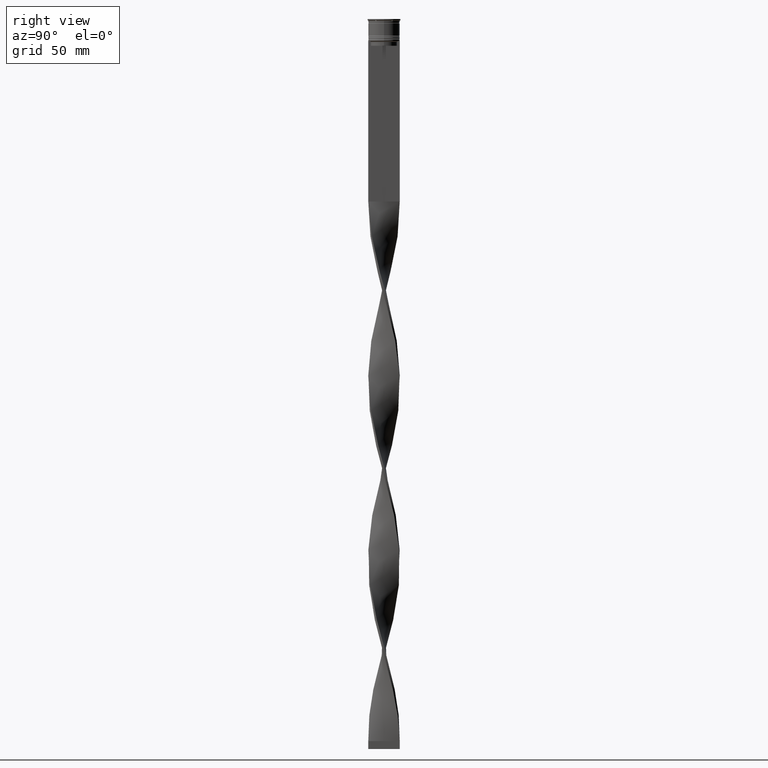
[diagram: clean part render]
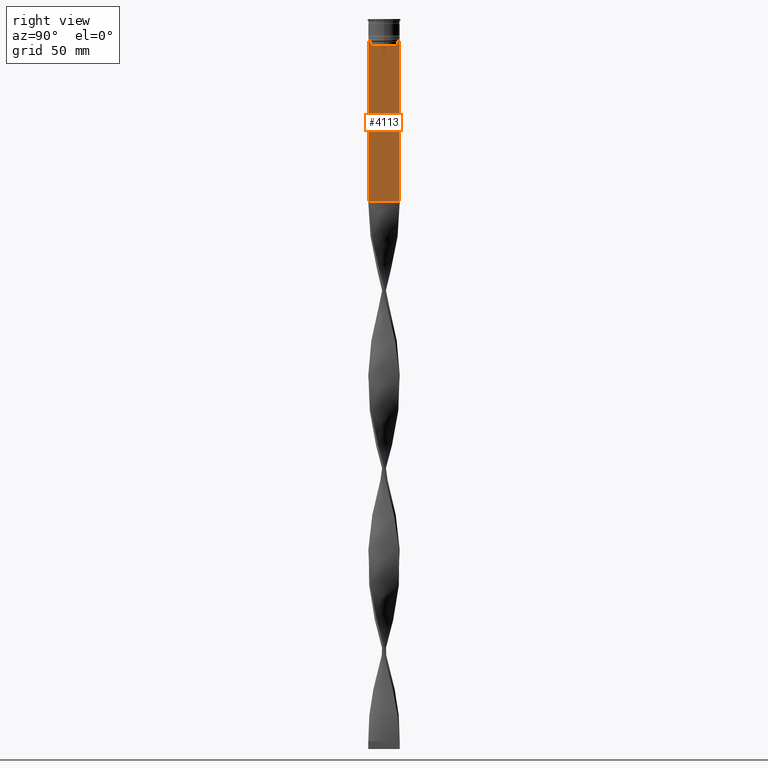
[diagram: same view with one face highlighted and labeled with its STEP entity id]
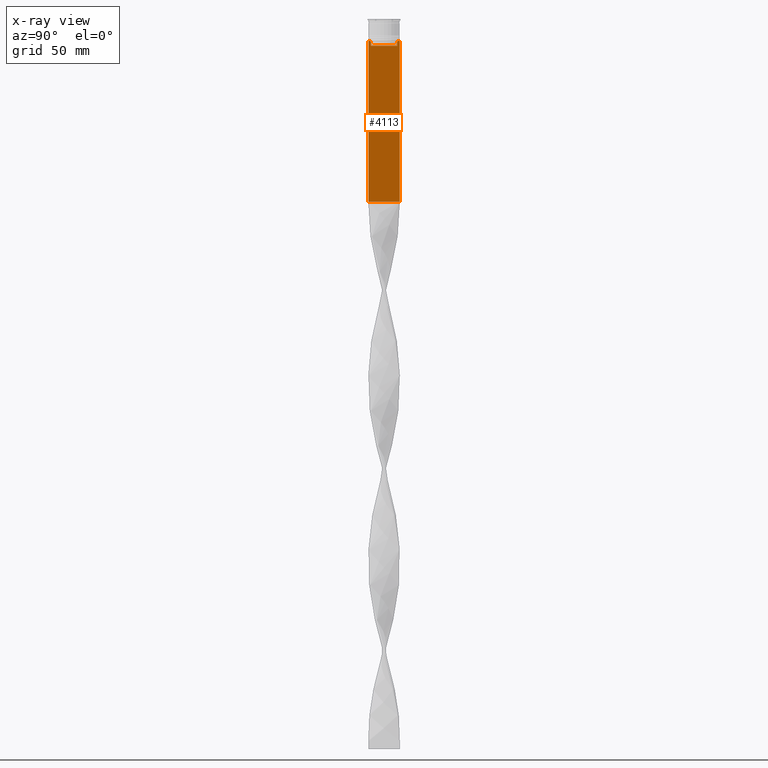
[diagram: x-ray of the same camera — body ghosted, the highlighted face saturated]
A machine part, right view. The second image highlights one B-rep face of the part: STEP entity #4113.
The next image is the same camera in x-ray: the body ghosted, the highlighted face saturated — about 0% of this face is hidden behind the body in this view.
In plain terms, the highlighted planar face has unit normal (-1, 0, 0).
Its self-contained STEP definition (entity closure, byte-faithful):
#2 = ORIENTED_EDGE ( 'NONE', *, *, #999, .T. ) ;
#53 = VECTOR ( 'NONE', #3851, 1000.000000000000000 ) ;
#93 = DIRECTION ( 'NONE',  ( 0.000000000000000000, -1.000000000000000000, 0.000000000000000000 ) ) ;
#163 = CARTESIAN_POINT ( 'NONE',  ( 0.7500000000000001110, 8.400000000000003908, -17.00000000000000000 ) ) ;
#378 = CARTESIAN_POINT ( 'NONE',  ( 0.7500000000000001110, 8.366450860430608927, 0.000000000000000000 ) ) ;
#407 = VECTOR ( 'NONE', #93, 1000.000000000000000 ) ;
#435 = VERTEX_POINT ( 'NONE', #3043 ) ;
#527 = CARTESIAN_POINT ( 'NONE',  ( 0.7500000000000001110, -8.366450860430608927, -14.50000000000000000 ) ) ;
#705 = CARTESIAN_POINT ( 'NONE',  ( 0.7500000000000001110, -8.366450860430608927, -17.00000000000000000 ) ) ;
#750 = DIRECTION ( 'NONE',  ( 0.000000000000000000, -1.000000000000000000, 0.000000000000000000 ) ) ;
#758 = LINE ( 'NONE', #378, #3866 ) ;
#840 = VECTOR ( 'NONE', #937, 1000.000000000000000 ) ;
#860 = DIRECTION ( 'NONE',  ( -0.000000000000000000, -0.000000000000000000, 1.000000000000000000 ) ) ;
#937 = DIRECTION ( 'NONE',  ( 0.000000000000000000, -1.000000000000000000, 0.000000000000000000 ) ) ;
#948 = LINE ( 'NONE', #1651, #2720 ) ;
#999 = EDGE_CURVE ( 'NONE', #4017, #2693, #2799, .T. ) ;
#1056 = VERTEX_POINT ( 'NONE', #705 ) ;
#1069 = VECTOR ( 'NONE', #2216, 1000.000000000000000 ) ;
#1129 = ORIENTED_EDGE ( 'NONE', *, *, #2825, .T. ) ;
#1133 = EDGE_CURVE ( 'NONE', #1848, #2424, #2751, .T. ) ;
#1186 = CARTESIAN_POINT ( 'NONE',  ( 0.7500000000000001110, -8.701063080777121428, -14.16668447713511725 ) ) ;
#1255 = DIRECTION ( 'NONE',  ( 0.000000000000000000, -1.000000000000000000, 0.000000000000000000 ) ) ;
#1379 = VERTEX_POINT ( 'NONE', #3058 ) ;
#1398 = CARTESIAN_POINT ( 'NONE',  ( 0.7500000000000001110, -8.868342573446296839, -14.00000000000000178 ) ) ;
#1450 = ORIENTED_EDGE ( 'NONE', *, *, #3566, .T. ) ;
#1477 = ORIENTED_EDGE ( 'NONE', *, *, #1580, .T. ) ;
#1524 = CARTESIAN_POINT ( 'NONE',  ( 0.7500000000000001110, 9.871550030263739117, -14.00000000000000178 ) ) ;
#1531 = CARTESIAN_POINT ( 'NONE',  ( 0.7500000000000002220, 9.999999999999998224, -116.0000000000000000 ) ) ;
#1575 = ORIENTED_EDGE ( 'NONE', *, *, #1133, .T. ) ;
#1580 = EDGE_CURVE ( 'NONE', #3285, #3036, #3279, .T. ) ;
#1591 = EDGE_CURVE ( 'NONE', #435, #4295, #2832, .T. ) ;
#1651 = CARTESIAN_POINT ( 'NONE',  ( 0.7500000000000001110, 9.999999999999998224, 6.056171120131581098 ) ) ;
#1676 = CARTESIAN_POINT ( 'NONE',  ( 0.7500000000000001110, -10.00000000000000533, -14.00000000000000178 ) ) ;
#1714 = VECTOR ( 'NONE', #860, 1000.000000000000000 ) ;
#1724 = CARTESIAN_POINT ( 'NONE',  ( 0.7500000000000001110, -10.00000000000000533, -14.00000000000000178 ) ) ;
#1735 = ORIENTED_EDGE ( 'NONE', *, *, #2857, .F. ) ;
#1848 = VERTEX_POINT ( 'NONE', #1398 ) ;
#1873 = CARTESIAN_POINT ( 'NONE',  ( 0.7500000000000001110, 8.366450860430608927, -14.50000000000000000 ) ) ;
#1900 = ORIENTED_EDGE ( 'NONE', *, *, #1966, .T. ) ;
#1966 = EDGE_CURVE ( 'NONE', #4295, #3285, #3699, .T. ) ;
#1996 = VECTOR ( 'NONE', #750, 1000.000000000000000 ) ;
#2216 = DIRECTION ( 'NONE',  ( 0.000000000000000000, -1.000000000000000000, 0.000000000000000000 ) ) ;
#2221 = CARTESIAN_POINT ( 'NONE',  ( 0.7500000000000001110, -8.868342573446296839, -14.00000000000000178 ) ) ;
#2299 = CARTESIAN_POINT ( 'NONE',  ( 0.7500000000000001110, -10.00000000000000533, 6.056171120131581098 ) ) ;
#2424 = VERTEX_POINT ( 'NONE', #2571 ) ;
#2429 = VERTEX_POINT ( 'NONE', #2545 ) ;
#2469 = DIRECTION ( 'NONE',  ( -1.000000000000000000, 0.000000000000000000, 0.000000000000000000 ) ) ;
#2472 = EDGE_CURVE ( 'NONE', #2529, #1056, #2864, .T. ) ;
#2479 = CARTESIAN_POINT ( 'NONE',  ( 0.7500000000000001110, -10.00000000000000533, -14.00000000000000178 ) ) ;
#2525 = EDGE_CURVE ( 'NONE', #1056, #2429, #2596, .T. ) ;
#2529 = VERTEX_POINT ( 'NONE', #3605 ) ;
#2545 = CARTESIAN_POINT ( 'NONE',  ( 0.7500000000000001110, -8.366450860430608927, -14.50000000000000000 ) ) ;
#2571 = CARTESIAN_POINT ( 'NONE',  ( 0.7500000000000001110, -9.871550030263739117, -14.00000000000000178 ) ) ;
#2574 = VECTOR ( 'NONE', #2961, 1000.000000000000000 ) ;
#2596 = LINE ( 'NONE', #4248, #1714 ) ;
#2625 = LINE ( 'NONE', #4253, #3009 ) ;
#2693 = VERTEX_POINT ( 'NONE', #1531 ) ;
#2720 = VECTOR ( 'NONE', #4354, 1000.000000000000000 ) ;
#2739 = CARTESIAN_POINT ( 'NONE',  ( 0.7500000000000001110, 8.868342573446296839, -14.00000000000000178 ) ) ;
#2751 = LINE ( 'NONE', #1724, #1996 ) ;
#2797 = B_SPLINE_CURVE_WITH_KNOTS ( 'NONE', 3,
 ( #527, #3917, #1186, #2221 ),
 .UNSPECIFIED., .F., .F.,
 ( 4, 4 ),
 ( 0.03866293624047253963, 0.03937282246709320616 ),
 .UNSPECIFIED. ) ;
#2799 = LINE ( 'NONE', #3488, #53 ) ;
#2804 = CARTESIAN_POINT ( 'NONE',  ( 0.7500000000000001110, -10.00000000000000533, 6.056171120131581098 ) ) ;
#2808 = DIRECTION ( 'NONE',  ( 0.000000000000000000, 0.000000000000000000, -1.000000000000000000 ) ) ;
#2825 = EDGE_CURVE ( 'NONE', #1379, #4017, #3230, .T. ) ;
#2832 = LINE ( 'NONE', #2479, #407 ) ;
#2857 = EDGE_CURVE ( 'NONE', #435, #2693, #948, .T. ) ;
#2864 = LINE ( 'NONE', #163, #1069 ) ;
#2961 = DIRECTION ( 'NONE',  ( 0.000000000000000000, 0.000000000000000000, -1.000000000000000000 ) ) ;
#3009 = VECTOR ( 'NONE', #1255, 1000.000000000000000 ) ;
#3011 = ORIENTED_EDGE ( 'NONE', *, *, #2472, .T. ) ;
#3036 = VERTEX_POINT ( 'NONE', #3618 ) ;
#3043 = CARTESIAN_POINT ( 'NONE',  ( 0.7500000000000001110, 9.999999999999998224, -14.00000000000000178 ) ) ;
#3058 = CARTESIAN_POINT ( 'NONE',  ( 0.7500000000000001110, -10.00000000000000533, -14.00000000000000178 ) ) ;
#3075 = AXIS2_PLACEMENT_3D ( 'NONE', #2804, #2469, #3837 ) ;
#3138 = PLANE ( 'NONE',  #3075 ) ;
#3169 = CARTESIAN_POINT ( 'NONE',  ( 0.7500000000000001110, 8.533766897779925031, -14.33335221373273605 ) ) ;
#3230 = LINE ( 'NONE', #2299, #2574 ) ;
#3279 = B_SPLINE_CURVE_WITH_KNOTS ( 'NONE', 3,
 ( #3890, #3510, #3169, #1873 ),
 .UNSPECIFIED., .F., .F.,
 ( 4, 4 ),
 ( 0.01512225952876174867, 0.01583070519299695222 ),
 .UNSPECIFIED. ) ;
#3285 = VERTEX_POINT ( 'NONE', #2739 ) ;
#3340 = ORIENTED_EDGE ( 'NONE', *, *, #4179, .T. ) ;
#3471 = EDGE_LOOP ( 'NONE', ( #1900, #1477, #1450, #3011, #4314, #3688, #1575, #3340, #1129, #2, #1735, #4110 ) ) ;
#3474 = CARTESIAN_POINT ( 'NONE',  ( 0.7500000000000001110, -10.00000000000000533, -116.0000000000000000 ) ) ;
#3488 = CARTESIAN_POINT ( 'NONE',  ( 0.7500000000000001110, -10.00000000000000533, -116.0000000000000000 ) ) ;
#3510 = CARTESIAN_POINT ( 'NONE',  ( 0.7500000000000001110, 8.701063075415250481, -14.16668448247791545 ) ) ;
#3566 = EDGE_CURVE ( 'NONE', #3036, #2529, #758, .T. ) ;
#3605 = CARTESIAN_POINT ( 'NONE',  ( 0.7500000000000001110, 8.366450860430608927, -17.00000000000000000 ) ) ;
#3618 = CARTESIAN_POINT ( 'NONE',  ( 0.7500000000000001110, 8.366450860430608927, -14.50000000000000000 ) ) ;
#3688 = ORIENTED_EDGE ( 'NONE', *, *, #4226, .T. ) ;
#3699 = LINE ( 'NONE', #1676, #840 ) ;
#3837 = DIRECTION ( 'NONE',  ( 0.000000000000000000, 0.000000000000000000, 1.000000000000000000 ) ) ;
#3851 = DIRECTION ( 'NONE',  ( 0.000000000000000000, 1.000000000000000000, 0.000000000000000000 ) ) ;
#3858 = FACE_OUTER_BOUND ( 'NONE', #3471, .T. ) ;
#3866 = VECTOR ( 'NONE', #2808, 1000.000000000000000 ) ;
#3890 = CARTESIAN_POINT ( 'NONE',  ( 0.7500000000000001110, 8.868342573446296839, -14.00000000000000178 ) ) ;
#3917 = CARTESIAN_POINT ( 'NONE',  ( 0.7500000000000001110, -8.533766903463440912, -14.33335220807192023 ) ) ;
#4017 = VERTEX_POINT ( 'NONE', #3474 ) ;
#4110 = ORIENTED_EDGE ( 'NONE', *, *, #1591, .T. ) ;
#4113 = ADVANCED_FACE ( 'NONE', ( #3858 ), #3138, .F. ) ;
#4179 = EDGE_CURVE ( 'NONE', #2424, #1379, #2625, .T. ) ;
#4226 = EDGE_CURVE ( 'NONE', #2429, #1848, #2797, .T. ) ;
#4248 = CARTESIAN_POINT ( 'NONE',  ( 0.7500000000000001110, -8.366450860430608927, 0.000000000000000000 ) ) ;
#4253 = CARTESIAN_POINT ( 'NONE',  ( 0.7500000000000001110, -10.00000000000000533, -14.00000000000000178 ) ) ;
#4295 = VERTEX_POINT ( 'NONE', #1524 ) ;
#4314 = ORIENTED_EDGE ( 'NONE', *, *, #2525, .T. ) ;
#4354 = DIRECTION ( 'NONE',  ( 0.000000000000000000, 0.000000000000000000, -1.000000000000000000 ) ) ;